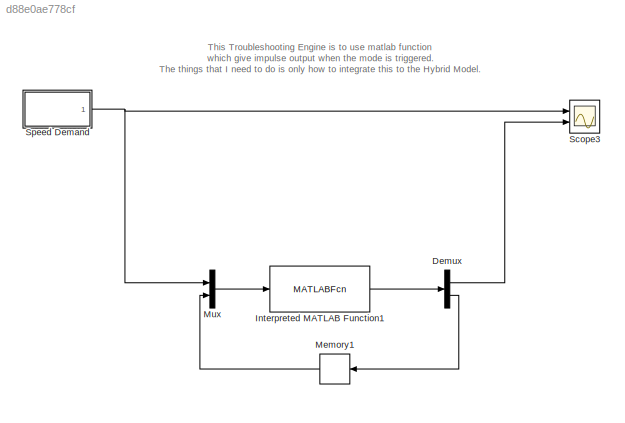
MODEL slx_d88e0ae778cf
KIND model
BLOCK [Demux] Demux
  DisplayOption = bar
  Outputs = 2
  Ports = [1, 2]
BLOCK [MATLABFcn] Interpreted MATLAB Function1
  MATLABFcn = Ideal_Alternator_Trigger
  Ports = [1, 1]
BLOCK [Memory] Memory1
BLOCK [Mux] Mux
  DisplayOption = bar
  Inputs = 2
  Ports = [2, 1]
BLOCK [Scope] Scope3
  DataFormat = StructureWithTime
  Floating = off
  NumInputPorts = 2
  Ports = [2]
  SampleTime = 0
  ShowLegends = off
  YMax = 5~5
  YMin = -5~-5
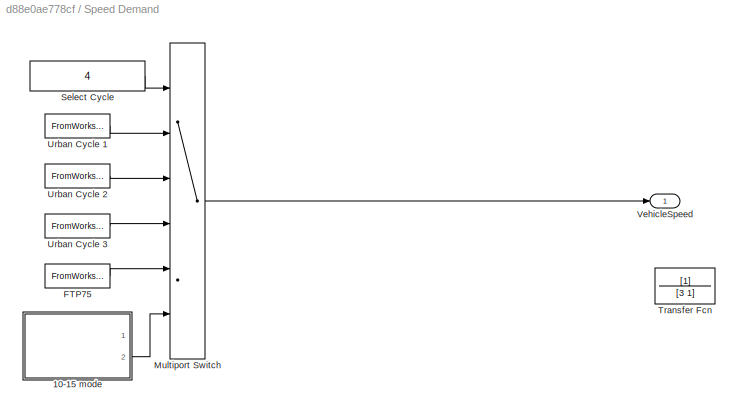
BLOCK [SubSystem] Speed Demand
  FunctionWithSeparateData = off
  MaskHideContents = off
  MinAlgLoopOccurrences = off
  Opaque = off
  Ports = [0, 1]
  PropExecContextOutsideSubsystem = off
  RTWSystemCode = Auto
  RequestExecContextInheritance = off
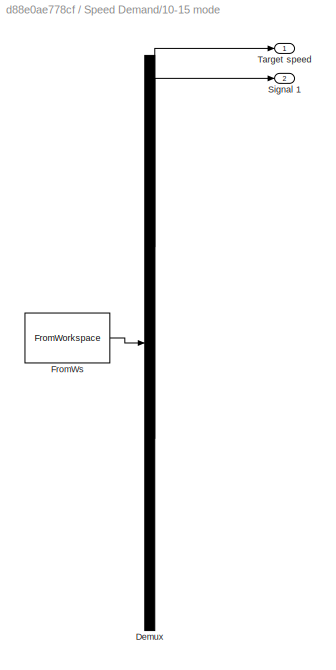
BLOCK [SubSystem] Speed Demand/10-15 mode 
  ClipboardFcn = sigbuilder_block('clipboard');
  CloseFcn = sigbuilder_block('close');
  ContinueFcn = sigbuilder_block('continue')
  CopyFcn = sigbuilder_block('copy');
  DeleteFcn = sigbuilder_block('delete');
  FunctionWithSeparateData = off
  LoadFcn = sigbuilder_block('load');
  MaskHideContents = on
  MinAlgLoopOccurrences = off
  ModelCloseFcn = sigbuilder_block('modelClose');
  NameChangeFcn = sigbuilder_block('namechange');
  Opaque = off
  OpenFcn = sigbuilder_block('open',[5.58621 35.3793 980.69 465.517 ]);
  PauseFcn = sigbuilder_block('pause')
  Ports = [0, 2]
  PreSaveFcn = sigbuilder_block('preSave');
  PropExecContextOutsideSubsystem = off
  RTWSystemCode = Auto
  RequestExecContextInheritance = off
  StartFcn = sigbuilder_block('start');
  StopFcn = sigbuilder_block('stop');
  Tag = STV Subsys
BLOCK [Demux] Speed Demand/10-15 mode /Demux
  Outputs = 2
  Ports = [1, 2]
  Tag = STV Demux
BLOCK [FromWorkspace] Speed Demand/10-15 mode /FromWs
  SampleTime = 0
  Tag = STV FromWs
  VariableName = tuvar
  ZeroCross = on
BLOCK [Outport] Speed Demand/10-15 mode /Signal 1
  IconDisplay = Port number
  Port = 2
  Tag = STV Outport
BLOCK [Outport] Speed Demand/10-15 mode /Target speed
  IconDisplay = Port number
  Tag = STV Outport
BLOCK [FromWorkspace] Speed Demand/FTP75
  SampleTime = 0
  VariableName = [UrbanCycle4.time Vehicle_MaxSpeed_kph/max(UrbanCycle4.SpdKph)*UrbanCycle4.SpdKph]
  ZeroCross = on
BLOCK [MultiPortSwitch] Speed Demand/Multiport Switch
  InputSameDT = off
  Inputs = 5
  Ports = [6, 1]
  SaturateOnIntegerOverflow = off
BLOCK [Constant] Speed Demand/Select Cycle
  Value = 4
BLOCK [TransferFcn] Speed Demand/Transfer Fcn
  Commented = on
  Denominator = [3 1]
BLOCK [FromWorkspace] Speed Demand/Urban Cycle 1
  SampleTime = 0
  VariableName = [UrbanCycle1.time UrbanCycle1.SpdKph]
  ZeroCross = on
BLOCK [FromWorkspace] Speed Demand/Urban Cycle 2
  SampleTime = 0
  VariableName = [UrbanCycle2.time UrbanCycle2.SpdKph]
  ZeroCross = on
BLOCK [FromWorkspace] Speed Demand/Urban Cycle 3
  SampleTime = 0
  VariableName = [UrbanCycle3.time UrbanCycle3.SpdKph]
  ZeroCross = on
BLOCK [Outport] Speed Demand/VehicleSpeed
  IconDisplay = Port number
ANNOTATION (root): This Troubleshooting Engine is to use matlab function which give impulse output when the mode is triggered. The things that I need to do is only how to integrate this to the Hybrid Model.
LINE Demux:1 -> Scope3:2
LINE Demux:2 -> Memory1:1
LINE Interpreted MATLAB Function1:1 -> Demux:1
LINE Memory1:1 -> Mux:2
LINE Mux:1 -> Interpreted MATLAB Function1:1
LINE Speed Demand/10-15 mode :2 -> Speed Demand/Multiport Switch:6
LINE Speed Demand/FTP75:1 -> Speed Demand/Multiport Switch:5
LINE Speed Demand/Multiport Switch:1 -> Speed Demand/VehicleSpeed:1
LINE Speed Demand/Select Cycle:1 -> Speed Demand/Multiport Switch:1
LINE Speed Demand/Urban Cycle 1:1 -> Speed Demand/Multiport Switch:2
LINE Speed Demand/Urban Cycle 2:1 -> Speed Demand/Multiport Switch:3
LINE Speed Demand/Urban Cycle 3:1 -> Speed Demand/Multiport Switch:4
NET Speed Demand:1 -> Mux:1, Scope3:1
note: NET lines group one-source signal fan-out (src -> all destinations, sorted); 1:1 wires keep LINE
